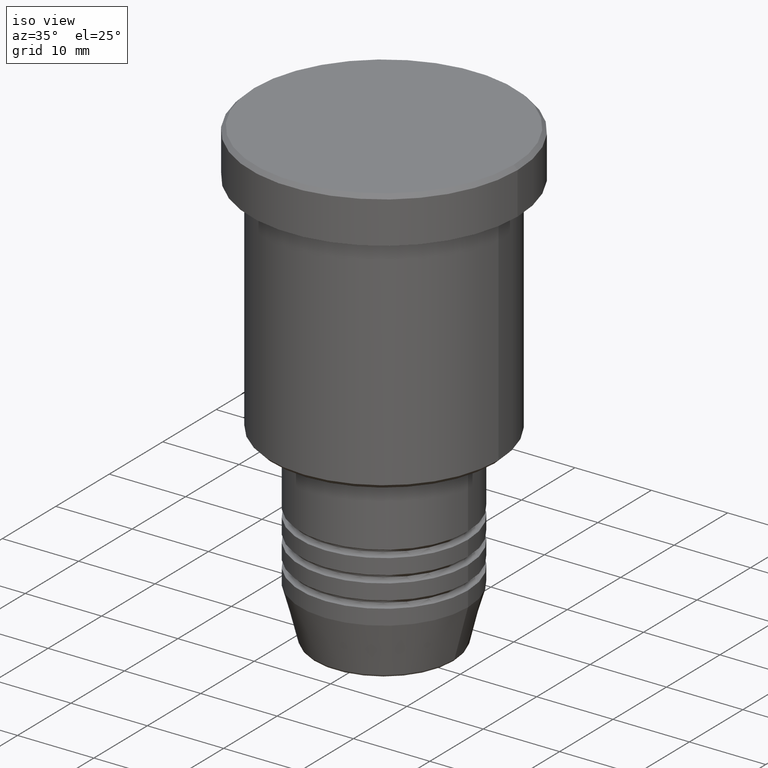
[diagram: clean part render]
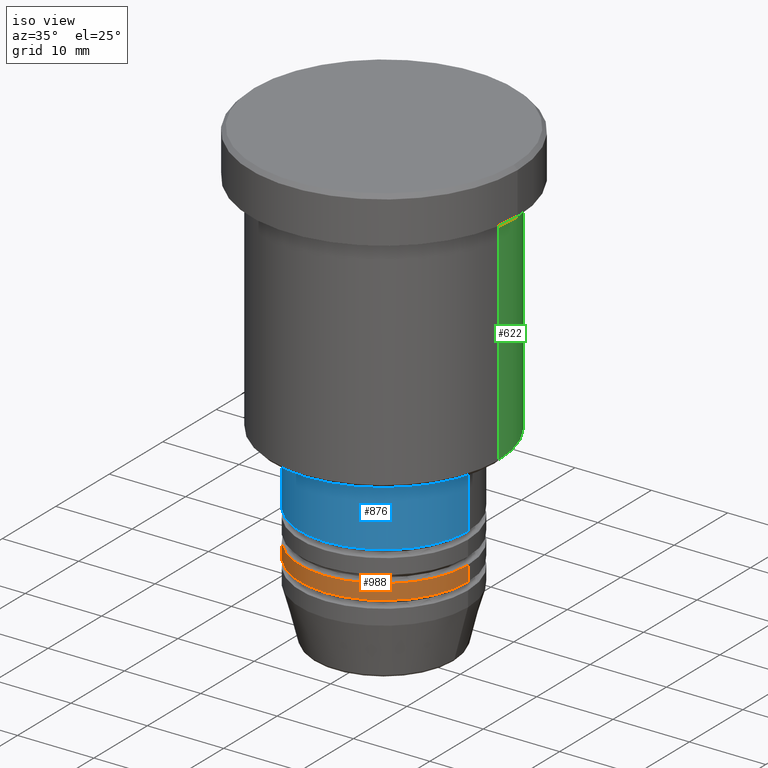
[diagram: same view with three faces highlighted in distinct colors, each labeled with its STEP entity id]
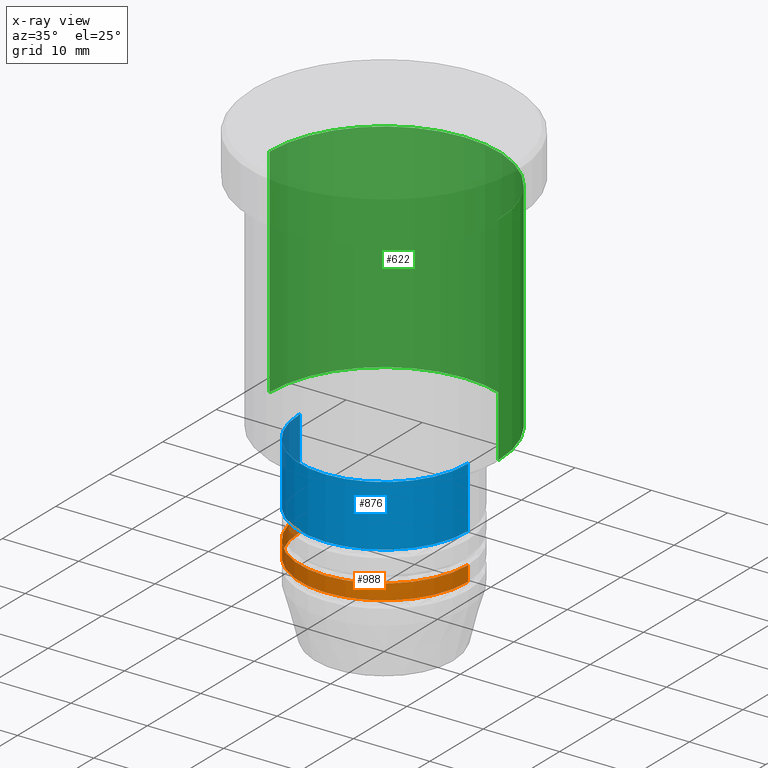
[diagram: x-ray of the same camera — body ghosted, the three highlighted faces saturated]
A machine part, iso view with three faces highlighted in distinct colors.
The next image is the same camera in x-ray (body ghosted, the three faces saturated) — at least one of them is partly hidden behind the body in this view.
Their STEP definitions:

[orange] entity #988 — the highlighted cylindrical surface (partial cylindrical patch) has radius 11 mm, axis along (-0, -0, 1).
#99 = AXIS2_PLACEMENT_3D ( 'NONE', #829, #724, #464 ) ;
#126 = CARTESIAN_POINT ( 'NONE',  ( -11.00000000000000000, 1.347111479062088405E-15, -50.99999999999997868 ) ) ;
#140 = AXIS2_PLACEMENT_3D ( 'NONE', #257, #447, #965 ) ;
#169 = EDGE_CURVE ( 'NONE', #822, #353, #677, .T. ) ;
#191 = EDGE_CURVE ( 'NONE', #822, #572, #729, .T. ) ;
#207 = CARTESIAN_POINT ( 'NONE',  ( 11.00000000000000000, 0.000000000000000000, -50.99999999999997868 ) ) ;
#220 = CARTESIAN_POINT ( 'NONE',  ( 0.000000000000000000, 0.000000000000000000, -48.99999999999997158 ) ) ;
#257 = CARTESIAN_POINT ( 'NONE',  ( 0.000000000000000000, 0.000000000000000000, 0.000000000000000000 ) ) ;
#287 = DIRECTION ( 'NONE',  ( -0.000000000000000000, -0.000000000000000000, 1.000000000000000000 ) ) ;
#353 = VERTEX_POINT ( 'NONE', #207 ) ;
#397 = CIRCLE ( 'NONE', #1092, 11.00000000000000000 ) ;
#419 = ORIENTED_EDGE ( 'NONE', *, *, #169, .T. ) ;
#438 = ORIENTED_EDGE ( 'NONE', *, *, #191, .F. ) ;
#447 = DIRECTION ( 'NONE',  ( -0.000000000000000000, -0.000000000000000000, 1.000000000000000000 ) ) ;
#464 = DIRECTION ( 'NONE',  ( 1.000000000000000000, 0.000000000000000000, 0.000000000000000000 ) ) ;
#470 = VECTOR ( 'NONE', #1137, 1000.000000000000000 ) ;
#524 = CYLINDRICAL_SURFACE ( 'NONE', #140, 11.00000000000000000 ) ;
#564 = DIRECTION ( 'NONE',  ( 1.000000000000000000, 0.000000000000000000, 0.000000000000000000 ) ) ;
#572 = VERTEX_POINT ( 'NONE', #840 ) ;
#619 = CARTESIAN_POINT ( 'NONE',  ( 11.00000000000000000, 0.000000000000000000, 0.000000000000000000 ) ) ;
#647 = CARTESIAN_POINT ( 'NONE',  ( 11.00000000000000000, 0.000000000000000000, -48.99999999999997158 ) ) ;
#677 = CIRCLE ( 'NONE', #99, 11.00000000000000000 ) ;
#724 = DIRECTION ( 'NONE',  ( -0.000000000000000000, -0.000000000000000000, 1.000000000000000000 ) ) ;
#727 = ORIENTED_EDGE ( 'NONE', *, *, #1045, .T. ) ;
#729 = LINE ( 'NONE', #1094, #753 ) ;
#742 = EDGE_LOOP ( 'NONE', ( #438, #419, #727, #1053 ) ) ;
#753 = VECTOR ( 'NONE', #287, 1000.000000000000000 ) ;
#799 = FACE_OUTER_BOUND ( 'NONE', #742, .T. ) ;
#822 = VERTEX_POINT ( 'NONE', #126 ) ;
#829 = CARTESIAN_POINT ( 'NONE',  ( 0.000000000000000000, 0.000000000000000000, -50.99999999999997868 ) ) ;
#840 = CARTESIAN_POINT ( 'NONE',  ( -11.00000000000000000, 1.347111479062088405E-15, -48.99999999999997158 ) ) ;
#868 = DIRECTION ( 'NONE',  ( -0.000000000000000000, -0.000000000000000000, 1.000000000000000000 ) ) ;
#906 = EDGE_CURVE ( 'NONE', #572, #969, #397, .T. ) ;
#965 = DIRECTION ( 'NONE',  ( 1.000000000000000000, 0.000000000000000000, 0.000000000000000000 ) ) ;
#969 = VERTEX_POINT ( 'NONE', #647 ) ;
#988 = ADVANCED_FACE ( 'NONE', ( #799 ), #524, .T. ) ;
#1045 = EDGE_CURVE ( 'NONE', #353, #969, #1069, .T. ) ;
#1053 = ORIENTED_EDGE ( 'NONE', *, *, #906, .F. ) ;
#1069 = LINE ( 'NONE', #619, #470 ) ;
#1092 = AXIS2_PLACEMENT_3D ( 'NONE', #220, #868, #564 ) ;
#1094 = CARTESIAN_POINT ( 'NONE',  ( -11.00000000000000000, 1.347111479062088405E-15, 0.000000000000000000 ) ) ;
#1137 = DIRECTION ( 'NONE',  ( -0.000000000000000000, -0.000000000000000000, 1.000000000000000000 ) ) ;

[blue] entity #876 — the highlighted cylindrical surface (partial cylindrical patch) has radius 11 mm, axis along (-0, -0, 1).
#1 = VERTEX_POINT ( 'NONE', #424 ) ;
#4 = DIRECTION ( 'NONE',  ( -0.000000000000000000, -0.000000000000000000, 1.000000000000000000 ) ) ;
#31 = CYLINDRICAL_SURFACE ( 'NONE', #541, 11.00000000000000000 ) ;
#55 = DIRECTION ( 'NONE',  ( 1.000000000000000000, 0.000000000000000000, 0.000000000000000000 ) ) ;
#94 = LINE ( 'NONE', #108, #1151 ) ;
#108 = CARTESIAN_POINT ( 'NONE',  ( -11.00000000000000000, 1.347111479062088405E-15, 0.000000000000000000 ) ) ;
#119 = AXIS2_PLACEMENT_3D ( 'NONE', #1149, #801, #254 ) ;
#226 = DIRECTION ( 'NONE',  ( -0.000000000000000000, -0.000000000000000000, 1.000000000000000000 ) ) ;
#254 = DIRECTION ( 'NONE',  ( 1.000000000000000000, 0.000000000000000000, 0.000000000000000000 ) ) ;
#259 = VERTEX_POINT ( 'NONE', #405 ) ;
#301 = ORIENTED_EDGE ( 'NONE', *, *, #645, .T. ) ;
#323 = CARTESIAN_POINT ( 'NONE',  ( 0.000000000000000000, 0.000000000000000000, -44.99999999999997158 ) ) ;
#333 = DIRECTION ( 'NONE',  ( -0.000000000000000000, -0.000000000000000000, 1.000000000000000000 ) ) ;
#352 = EDGE_LOOP ( 'NONE', ( #740, #301, #456, #950 ) ) ;
#360 = EDGE_CURVE ( 'NONE', #611, #655, #94, .T. ) ;
#390 = DIRECTION ( 'NONE',  ( -0.000000000000000000, -0.000000000000000000, 1.000000000000000000 ) ) ;
#392 = EDGE_CURVE ( 'NONE', #655, #1, #600, .T. ) ;
#405 = CARTESIAN_POINT ( 'NONE',  ( 11.00000000000000000, 0.000000000000000000, -44.99999999999997158 ) ) ;
#424 = CARTESIAN_POINT ( 'NONE',  ( 11.00000000000000000, 0.000000000000000000, -36.99999999999999289 ) ) ;
#456 = ORIENTED_EDGE ( 'NONE', *, *, #919, .T. ) ;
#541 = AXIS2_PLACEMENT_3D ( 'NONE', #771, #390, #657 ) ;
#600 = CIRCLE ( 'NONE', #119, 11.00000000000000000 ) ;
#602 = AXIS2_PLACEMENT_3D ( 'NONE', #323, #333, #55 ) ;
#611 = VERTEX_POINT ( 'NONE', #1025 ) ;
#645 = EDGE_CURVE ( 'NONE', #611, #259, #1011, .T. ) ;
#655 = VERTEX_POINT ( 'NONE', #1052 ) ;
#657 = DIRECTION ( 'NONE',  ( 1.000000000000000000, 0.000000000000000000, 0.000000000000000000 ) ) ;
#740 = ORIENTED_EDGE ( 'NONE', *, *, #360, .F. ) ;
#771 = CARTESIAN_POINT ( 'NONE',  ( 0.000000000000000000, 0.000000000000000000, 0.000000000000000000 ) ) ;
#801 = DIRECTION ( 'NONE',  ( -0.000000000000000000, -0.000000000000000000, 1.000000000000000000 ) ) ;
#864 = CARTESIAN_POINT ( 'NONE',  ( 11.00000000000000000, 0.000000000000000000, 0.000000000000000000 ) ) ;
#876 = ADVANCED_FACE ( 'NONE', ( #1037 ), #31, .T. ) ;
#919 = EDGE_CURVE ( 'NONE', #259, #1, #948, .T. ) ;
#948 = LINE ( 'NONE', #864, #1014 ) ;
#950 = ORIENTED_EDGE ( 'NONE', *, *, #392, .F. ) ;
#1011 = CIRCLE ( 'NONE', #602, 11.00000000000000000 ) ;
#1014 = VECTOR ( 'NONE', #226, 1000.000000000000000 ) ;
#1025 = CARTESIAN_POINT ( 'NONE',  ( -11.00000000000000000, 1.347111479062088405E-15, -44.99999999999997158 ) ) ;
#1037 = FACE_OUTER_BOUND ( 'NONE', #352, .T. ) ;
#1052 = CARTESIAN_POINT ( 'NONE',  ( -11.00000000000000000, 1.347111479062088405E-15, -36.99999999999999289 ) ) ;
#1149 = CARTESIAN_POINT ( 'NONE',  ( 0.000000000000000000, 0.000000000000000000, -36.99999999999999289 ) ) ;
#1151 = VECTOR ( 'NONE', #4, 1000.000000000000000 ) ;

[green] entity #622 — the highlighted cylindrical surface (partial cylindrical patch) has radius 15 mm, axis along (-0, -0, 1).
#76 = CARTESIAN_POINT ( 'NONE',  ( 0.000000000000000000, 0.000000000000000000, -35.49999999999998579 ) ) ;
#151 = DIRECTION ( 'NONE',  ( -0.000000000000000000, -0.000000000000000000, 1.000000000000000000 ) ) ;
#152 = EDGE_CURVE ( 'NONE', #682, #233, #598, .T. ) ;
#184 = EDGE_CURVE ( 'NONE', #682, #1048, #457, .T. ) ;
#232 = CARTESIAN_POINT ( 'NONE',  ( -15.00000000000000000, 1.836970198721029589E-15, -35.49999999999998579 ) ) ;
#233 = VERTEX_POINT ( 'NONE', #916 ) ;
#234 = FACE_OUTER_BOUND ( 'NONE', #705, .T. ) ;
#241 = CARTESIAN_POINT ( 'NONE',  ( 15.00000000000000000, 0.000000000000000000, 0.000000000000000000 ) ) ;
#274 = DIRECTION ( 'NONE',  ( -1.000000000000000000, 0.000000000000000000, 0.000000000000000000 ) ) ;
#296 = AXIS2_PLACEMENT_3D ( 'NONE', #1145, #967, #1139 ) ;
#344 = AXIS2_PLACEMENT_3D ( 'NONE', #76, #1183, #274 ) ;
#407 = DIRECTION ( 'NONE',  ( -0.000000000000000000, -0.000000000000000000, 1.000000000000000000 ) ) ;
#426 = CYLINDRICAL_SURFACE ( 'NONE', #296, 15.00000000000000000 ) ;
#434 = CARTESIAN_POINT ( 'NONE',  ( -15.00000000000000000, 1.836970198721029589E-15, -6.999999999999995559 ) ) ;
#457 = CIRCLE ( 'NONE', #344, 15.00000000000000000 ) ;
#465 = ORIENTED_EDGE ( 'NONE', *, *, #152, .F. ) ;
#474 = DIRECTION ( 'NONE',  ( 1.000000000000000000, 0.000000000000000000, 0.000000000000000000 ) ) ;
#481 = CARTESIAN_POINT ( 'NONE',  ( -15.00000000000000000, 1.836970198721029589E-15, 0.000000000000000000 ) ) ;
#486 = DIRECTION ( 'NONE',  ( -0.000000000000000000, -0.000000000000000000, 1.000000000000000000 ) ) ;
#522 = ORIENTED_EDGE ( 'NONE', *, *, #184, .T. ) ;
#543 = EDGE_CURVE ( 'NONE', #1048, #764, #927, .T. ) ;
#558 = VECTOR ( 'NONE', #407, 1000.000000000000000 ) ;
#565 = ORIENTED_EDGE ( 'NONE', *, *, #543, .T. ) ;
#567 = EDGE_CURVE ( 'NONE', #233, #764, #728, .T. ) ;
#598 = LINE ( 'NONE', #241, #818 ) ;
#622 = ADVANCED_FACE ( 'NONE', ( #234 ), #426, .T. ) ;
#670 = CARTESIAN_POINT ( 'NONE',  ( 0.000000000000000000, 0.000000000000000000, -6.999999999999995559 ) ) ;
#682 = VERTEX_POINT ( 'NONE', #703 ) ;
#703 = CARTESIAN_POINT ( 'NONE',  ( 15.00000000000000000, 0.000000000000000000, -35.49999999999998579 ) ) ;
#705 = EDGE_LOOP ( 'NONE', ( #522, #565, #1067, #465 ) ) ;
#728 = CIRCLE ( 'NONE', #1074, 15.00000000000000000 ) ;
#764 = VERTEX_POINT ( 'NONE', #434 ) ;
#818 = VECTOR ( 'NONE', #151, 1000.000000000000000 ) ;
#916 = CARTESIAN_POINT ( 'NONE',  ( 15.00000000000000000, 0.000000000000000000, -6.999999999999995559 ) ) ;
#927 = LINE ( 'NONE', #481, #558 ) ;
#967 = DIRECTION ( 'NONE',  ( -0.000000000000000000, -0.000000000000000000, 1.000000000000000000 ) ) ;
#1048 = VERTEX_POINT ( 'NONE', #232 ) ;
#1067 = ORIENTED_EDGE ( 'NONE', *, *, #567, .F. ) ;
#1074 = AXIS2_PLACEMENT_3D ( 'NONE', #670, #486, #474 ) ;
#1139 = DIRECTION ( 'NONE',  ( 1.000000000000000000, 0.000000000000000000, 0.000000000000000000 ) ) ;
#1145 = CARTESIAN_POINT ( 'NONE',  ( 0.000000000000000000, 0.000000000000000000, 0.000000000000000000 ) ) ;
#1183 = DIRECTION ( 'NONE',  ( -0.000000000000000000, -0.000000000000000000, 1.000000000000000000 ) ) ;